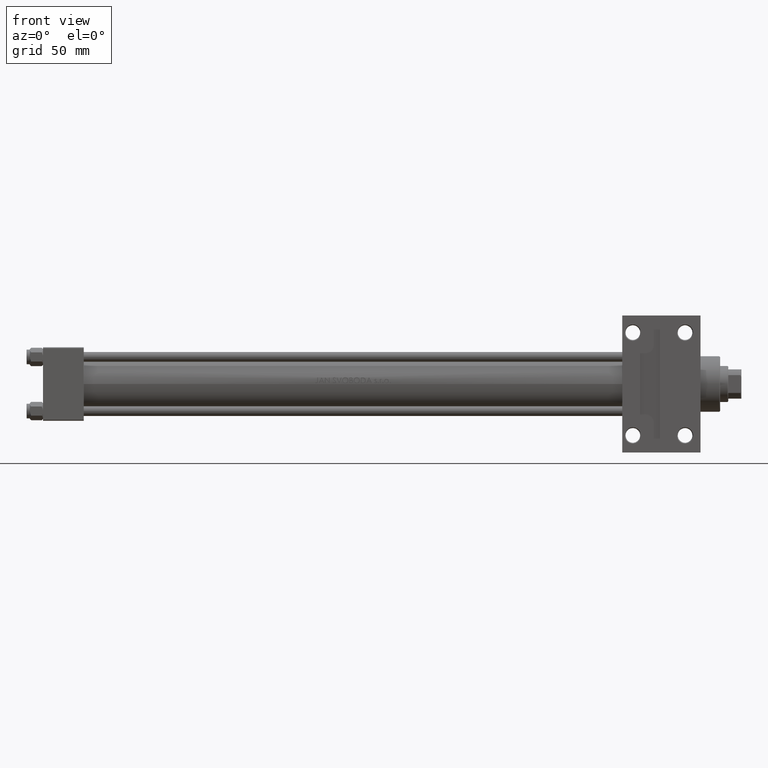
[diagram: clean part render]
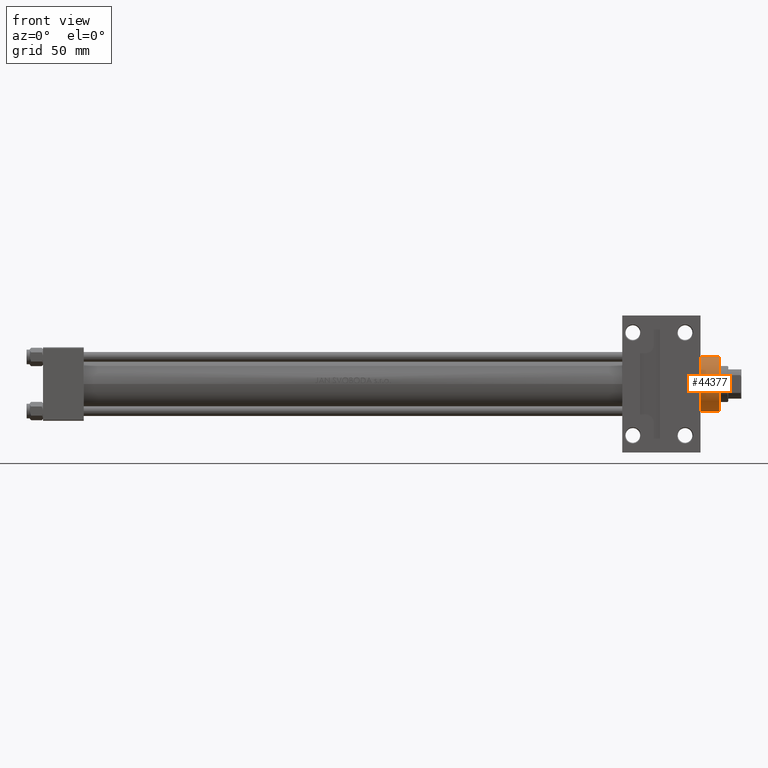
[diagram: same view with one face highlighted and labeled with its STEP entity id]
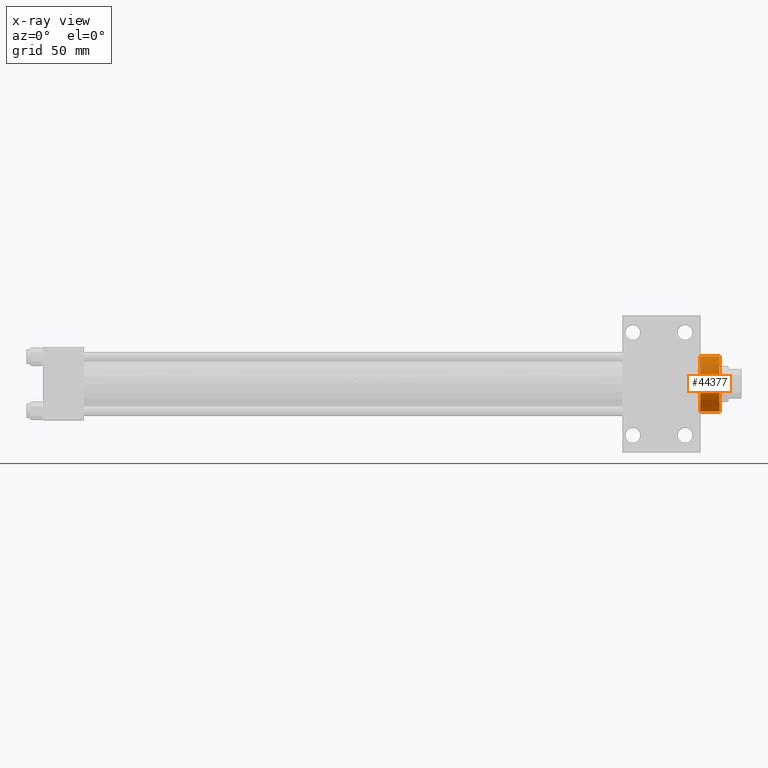
[diagram: x-ray of the same camera — body ghosted, the highlighted face saturated]
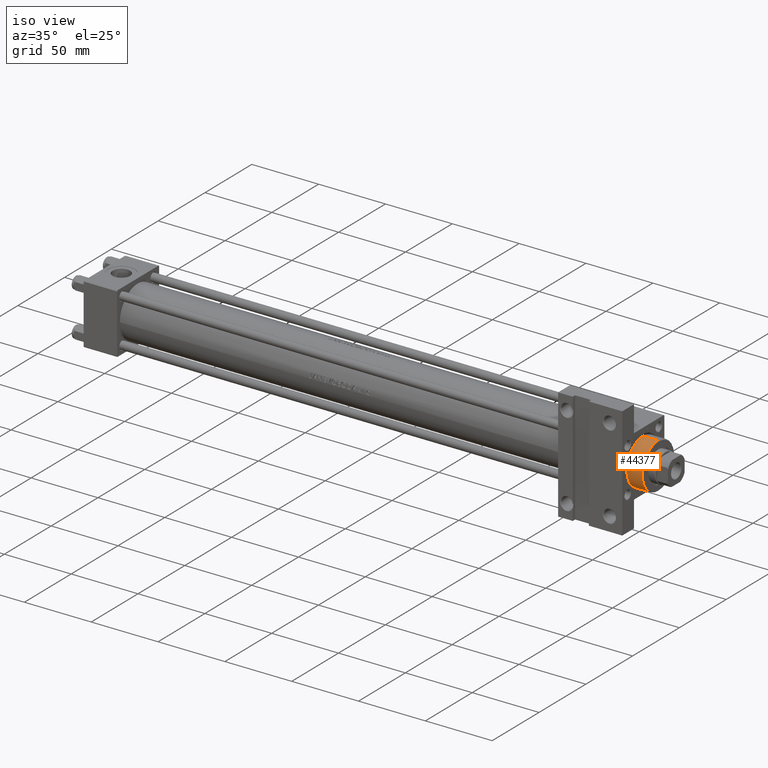
[diagram: same view with one face highlighted and labeled with its STEP entity id]
A machine part, front view. The second image highlights one B-rep face of the part: STEP entity #44377.
The next image is the same camera in x-ray: the body ghosted, the highlighted face saturated — about 0% of this face is hidden behind the body in this view.
A second angle (iso view) of the same face is appended — the face is thin or edge-on in the first view.
In plain terms, the highlighted cylindrical surface (edge-blend (fillet) strip) has radius 17 mm, axis along (-1, 0, 0).
Its self-contained STEP definition (entity closure, byte-faithful):
#1892 = VECTOR ( 'NONE', #37531, 1000.000000000000000 ) ;
#4227 = CARTESIAN_POINT ( 'NONE',  ( -17.00000000000000000, 0.000000000000000000, 40.70000000000000284 ) ) ;
#4688 = LINE ( 'NONE', #4227, #1892 ) ;
#7252 = CIRCLE ( 'NONE', #31941, 17.00000000000000000 ) ;
#7255 = ORIENTED_EDGE ( 'NONE', *, *, #26620, .T. ) ;
#7429 = DIRECTION ( 'NONE',  ( 0.000000000000000000, 0.000000000000000000, 1.000000000000000000 ) ) ;
#8209 = AXIS2_PLACEMENT_3D ( 'NONE', #17920, #32671, #25394 ) ;
#12566 = LINE ( 'NONE', #35021, #19733 ) ;
#14208 = DIRECTION ( 'NONE',  ( 1.000000000000000000, 0.000000000000000000, 0.000000000000000000 ) ) ;
#15371 = ORIENTED_EDGE ( 'NONE', *, *, #37538, .T. ) ;
#16525 = DIRECTION ( 'NONE',  ( 0.000000000000000000, 0.000000000000000000, -1.000000000000000000 ) ) ;
#16760 = DIRECTION ( 'NONE',  ( 1.000000000000000000, 0.000000000000000000, 0.000000000000000000 ) ) ;
#17557 = ORIENTED_EDGE ( 'NONE', *, *, #43644, .T. ) ;
#17882 = VERTEX_POINT ( 'NONE', #42695 ) ;
#17920 = CARTESIAN_POINT ( 'NONE',  ( 0.000000000000000000, 0.000000000000000000, 40.70000000000000284 ) ) ;
#18100 = AXIS2_PLACEMENT_3D ( 'NONE', #45730, #16525, #16760 ) ;
#18904 = ORIENTED_EDGE ( 'NONE', *, *, #20335, .F. ) ;
#19095 = VERTEX_POINT ( 'NONE', #19452 ) ;
#19452 = CARTESIAN_POINT ( 'NONE',  ( 17.00000000000000000, 2.081899558550500280E-15, 40.19999999999999574 ) ) ;
#19733 = VECTOR ( 'NONE', #35260, 1000.000000000000000 ) ;
#20335 = EDGE_CURVE ( 'NONE', #46149, #40009, #4688, .T. ) ;
#25394 = DIRECTION ( 'NONE',  ( -1.000000000000000000, 0.000000000000000000, 0.000000000000000000 ) ) ;
#26620 = EDGE_CURVE ( 'NONE', #46149, #19095, #30450, .T. ) ;
#29284 = FACE_OUTER_BOUND ( 'NONE', #38223, .T. ) ;
#30450 = CIRCLE ( 'NONE', #18100, 17.00000000000000000 ) ;
#31941 = AXIS2_PLACEMENT_3D ( 'NONE', #39794, #7429, #14208 ) ;
#32671 = DIRECTION ( 'NONE',  ( -0.000000000000000000, -0.000000000000000000, -1.000000000000000000 ) ) ;
#35021 = CARTESIAN_POINT ( 'NONE',  ( 17.00000000000000000, 2.081899558550500280E-15, 40.70000000000000284 ) ) ;
#35260 = DIRECTION ( 'NONE',  ( -0.000000000000000000, -0.000000000000000000, -1.000000000000000000 ) ) ;
#36765 = CYLINDRICAL_SURFACE ( 'NONE', #8209, 17.00000000000000000 ) ;
#37531 = DIRECTION ( 'NONE',  ( -0.000000000000000000, -0.000000000000000000, -1.000000000000000000 ) ) ;
#37538 = EDGE_CURVE ( 'NONE', #17882, #40009, #7252, .T. ) ;
#37860 = CARTESIAN_POINT ( 'NONE',  ( -17.00000000000000000, 0.000000000000000000, 28.69999999999999929 ) ) ;
#38223 = EDGE_LOOP ( 'NONE', ( #7255, #17557, #15371, #18904 ) ) ;
#39794 = CARTESIAN_POINT ( 'NONE',  ( 0.000000000000000000, 0.000000000000000000, 28.69999999999999929 ) ) ;
#40009 = VERTEX_POINT ( 'NONE', #37860 ) ;
#42236 = CARTESIAN_POINT ( 'NONE',  ( -17.00000000000000000, 0.000000000000000000, 40.19999999999999574 ) ) ;
#42695 = CARTESIAN_POINT ( 'NONE',  ( 17.00000000000000000, 2.081899558550500280E-15, 28.69999999999999929 ) ) ;
#43644 = EDGE_CURVE ( 'NONE', #19095, #17882, #12566, .T. ) ;
#44377 = ADVANCED_FACE ( 'NONE', ( #29284 ), #36765, .T. ) ;
#45730 = CARTESIAN_POINT ( 'NONE',  ( 0.000000000000000000, 0.000000000000000000, 40.19999999999999574 ) ) ;
#46149 = VERTEX_POINT ( 'NONE', #42236 ) ;